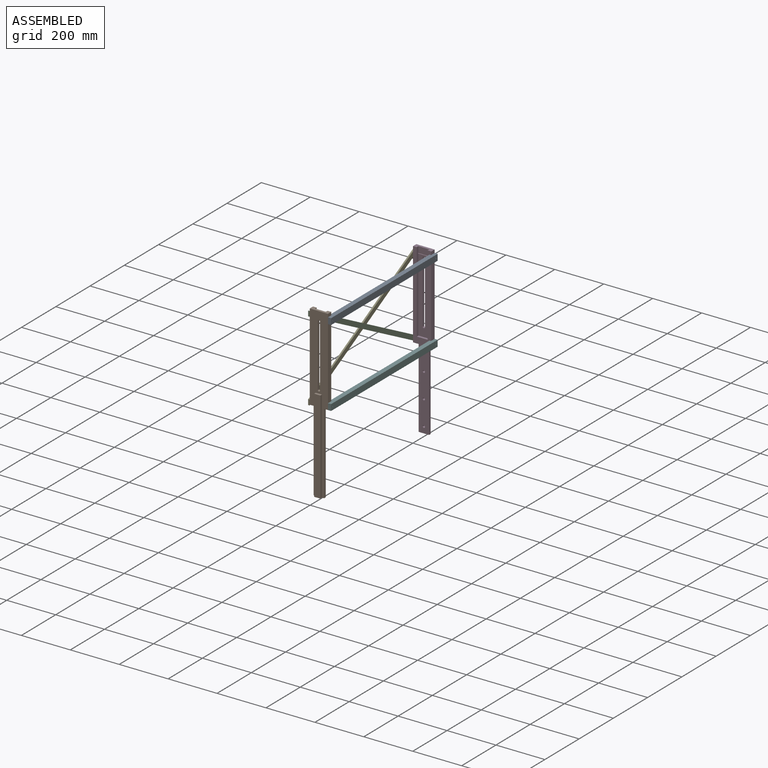
[diagram: assembled view]
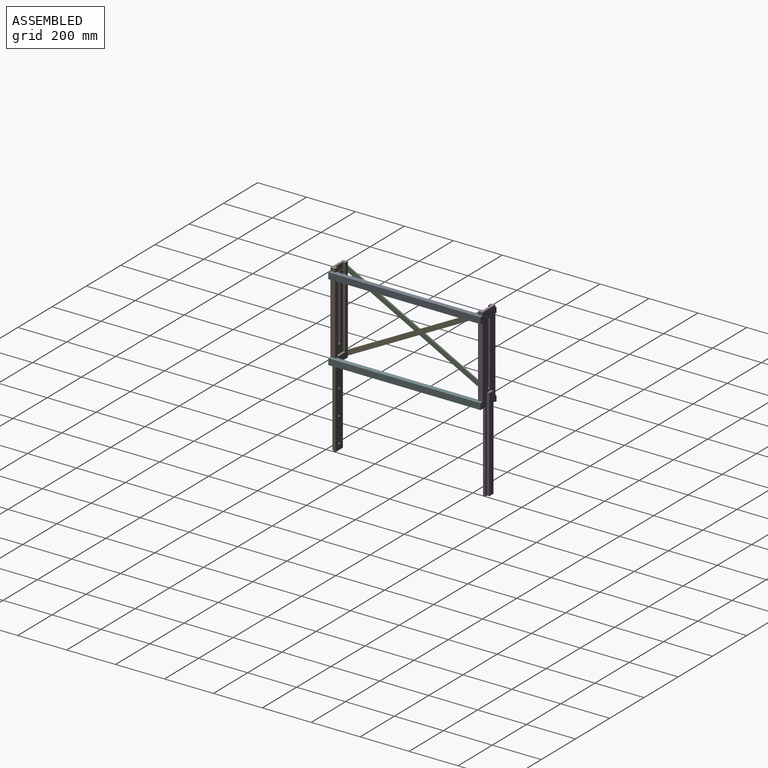
[diagram: assembled view, second angle]
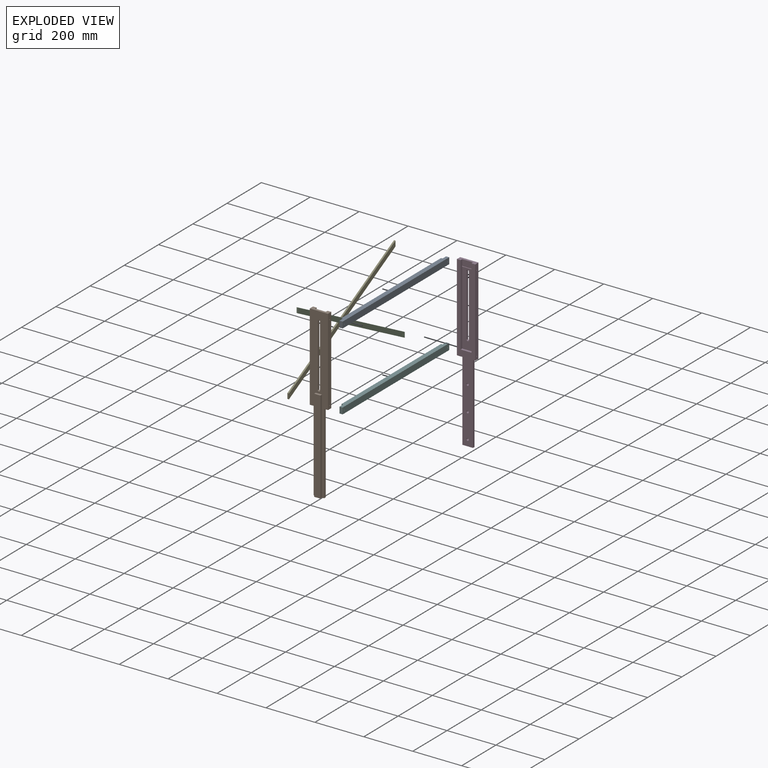
[diagram: exploded view]
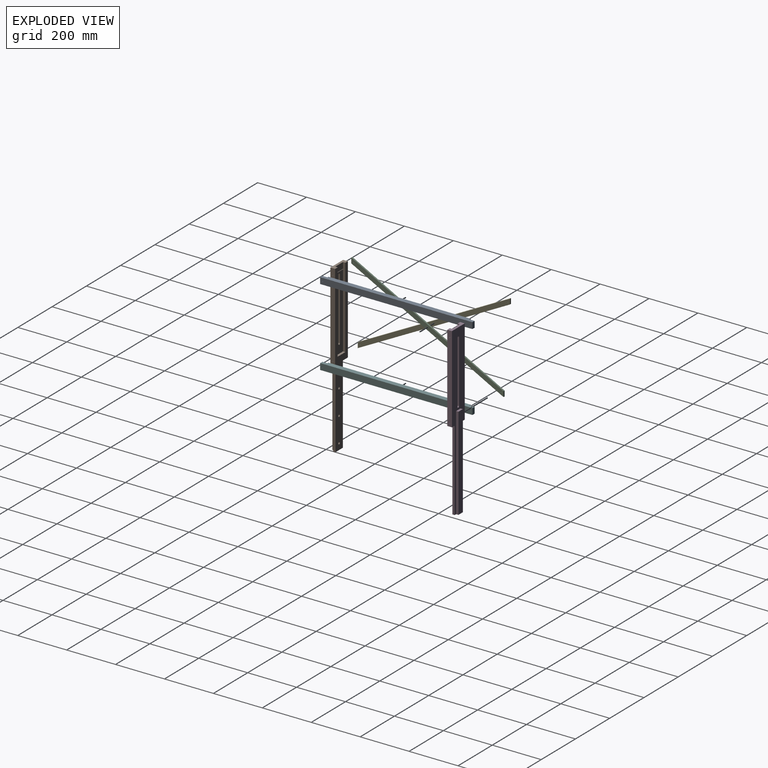
[diagram: exploded view, second angle]
ASSEMBLY  parts=6 mates=9
PART A: 12 faces, bbox 19.1x622.3x25.4 mm
  f0: plane 622.3x19.05mm, normal (0,0,1), area 11592.7mm2, adj f1,f4,f5,f6,f8,f9,f10,f11
  f1: plane 581.03x25.4mm, normal (-1,0,0), area 14758mm2, adj f0,f2,f9,f11
  f2: plane 622.3x19.05mm, normal (0,0,-1), area 11592.7mm2, adj f1,f4,f5,f6,f8,f9,f10,f11
  f3: cylinder r=1.59mm len=12.7mm, axis (1,0,0), area 126.7mm2, adj f4,f8
  f4: plane 622.3x25.4mm, normal (1,0,0), area 15790.6mm2, adj f0,f2,f3,f5,f6,f7
  f5: plane 25.4x12.7mm, normal (0,-1,0), area 322.6mm2, adj f0,f2,f4,f10
  f6: plane 25.4x12.7mm, normal (0,1,0), area 322.6mm2, adj f0,f2,f4,f8
  f7: cylinder r=1.59mm len=12.7mm, axis (1,0,0), area 126.7mm2, adj f4,f10
  f8: plane 25.4x20.64mm, normal (-1,0,0), area 516.3mm2, adj f0,f2,f3,f6,f9
  f9: plane 25.4x6.35mm, normal (0,1,0), area 161.3mm2, adj f0,f1,f2,f8
  f10: plane 25.4x20.64mm, normal (-1,0,0), area 516.3mm2, adj f0,f2,f5,f7,f11
  f11: plane 25.4x6.35mm, normal (0,-1,0), area 161.3mm2, adj f0,f1,f2,f10
PART B: 34 faces, bbox 74.6x28.6x685.8 mm
  f0: plane 303.21x44.45mm, normal (0,-1,0), area 10992.3mm2, adj f3,f4,f14,f15,f16,f27,f28,f29
  f1: plane 44.45x23.81mm, normal (0,-1,0), area 1058.5mm2, adj f7,f14,f15,f32
  f2: plane 685.8x74.61mm, normal (0,1,0), area 28522.5mm2, adj f3,f4,f5,f7,f8,f9,f10,f11
  f3: cylinder r=4.76mm len=9.53mm, axis (0,1,0), area 142.5mm2, adj f0,f2,f29,f30
  f4: cylinder r=4.76mm len=9.53mm, axis (0,1,0), area 148.2mm2, adj f0,f2,f28,f29
  f5: plane 42.86x19.05mm, normal (0,0,-1), area 650.2mm2, adj f2,f10,f11,f13,f17,f18,f19
  f6: plane 355.6x74.61mm, normal (0,-1,0), area 11854.8mm2, adj f7,f8,f9,f14,f15,f16,f20
  f7: plane 74.61x19.05mm, normal (0,0,1), area 998mm2, adj f1,f2,f6,f8,f9,f14,f15
  f8: plane 355.6x19.05mm, normal (1,0,0), area 6758.3mm2, adj f2,f6,f7,f20,f32,f33
  f9: plane 355.6x19.05mm, normal (-1,0,0), area 6758.3mm2, adj f2,f6,f7,f20,f32,f33
  f10: plane 381x9.53mm, normal (1,0,0), area 3629mm2, adj f2,f5,f12,f13
  f11: plane 381x9.53mm, normal (-1,0,0), area 3629mm2, adj f2,f5,f12,f13
  f12: plane 25.4x9.53mm, normal (0,0,1), area 241.9mm2, adj f2,f10,f11,f13
  f13: plane 381x25.4mm, normal (0,1,0), area 9677.4mm2, adj f5,f10,f11,f12
  f14: plane 330.2x9.53mm, normal (1,0,0), area 3141.2mm2, adj f0,f1,f6,f7,f16,f32
  f15: plane 330.2x9.53mm, normal (-1,0,0), area 3141.2mm2, adj f0,f1,f6,f7,f16,f32
  f16: plane 44.45x9.53mm, normal (0,0,1), area 423.4mm2, adj f0,f6,f14,f15
  f17: plane 330.2x9.53mm, normal (-1,0,0), area 3145.2mm2, adj f2,f5,f18,f20
  f18: plane 330.2x42.86mm, normal (0,-1,0), area 13939.4mm2, adj f5,f17,f19,f20,f21,f23,f25
  f19: plane 330.2x9.53mm, normal (1,0,0), area 3145.2mm2, adj f2,f5,f18,f20
  f20: plane 74.61x19.05mm, normal (0,0,-1), area 1013.1mm2, adj f2,f6,f8,f9,f17,f18,f19
  f21: cylinder r=4.76mm len=9.53mm, axis (0,1,0), area 285mm2, adj f18,f22
  f22: plane 9.53x9.53mm, normal (0,-1,0), area 71.3mm2, adj f21
  f23: cylinder r=4.76mm len=9.53mm, axis (0,1,0), area 285mm2, adj f18,f24
  f24: plane 9.53x9.53mm, normal (0,-1,0), area 71.3mm2, adj f23
  f25: cylinder r=4.76mm len=9.53mm, axis (0,1,0), area 285mm2, adj f18,f26
  f26: plane 9.53x9.53mm, normal (0,-1,0), area 71.3mm2, adj f25
  f27: cylinder r=4.76mm len=9.53mm, axis (0,1,0), area 4.1mm2, adj f0,f2,f28,f31
  f28: plane 253.57x9.53mm, normal (-1,0,0), area 2415.2mm2, adj f0,f2,f4,f27
  f29: plane 253.23x9.53mm, normal (1,0,0), area 2412.1mm2, adj f0,f2,f3,f4
  f30: plane 9.53x0.01mm, normal (0,0,1), area 0.1mm2, adj f0,f2,f3,f31
  f31: plane 9.53x0.17mm, normal (-1,0,0), area 1.6mm2, adj f0,f2,f27,f30
  f32: cylinder r=1.59mm len=74.61mm, axis (-1,0,0), area 522.5mm2, adj f0,f1,f8,f9,f14,f15
  f33: cylinder r=1.59mm len=74.61mm, axis (-1,0,0), area 744.2mm2, adj f8,f9
PART C: 8 faces, bbox 6.4x622.3x349.1 mm
  f0: plane 21.53x6.35mm, normal (0,-1,0), area 136.7mm2, adj f1,f3,f4,f5
  f1: plane 622.3x327.53mm, normal (0,0.47,0.88), area 4465.5mm2, adj f0,f2,f3,f4
  f2: plane 21.53x6.35mm, normal (0,1,0), area 136.7mm2, adj f1,f3,f4,f5
  f3: plane 622.3x349.05mm, normal (-1,0,0), area 13380.7mm2, adj f0,f1,f2,f5,f6,f7
  f4: plane 622.3x349.05mm, normal (1,0,0), area 13380.7mm2, adj f0,f1,f2,f5,f6,f7
  f5: plane 622.3x327.53mm, normal (0,-0.47,-0.88), area 4465.5mm2, adj f0,f2,f3,f4
  f6: cylinder r=1.59mm len=6.35mm, axis (1,0,0), area 63.3mm2, adj f3,f4
  f7: cylinder r=1.59mm len=6.35mm, axis (1,0,0), area 63.3mm2, adj f3,f4
PART D: same geometry as B
PART E: same geometry as C
PART F: same geometry as A
PLACE A rot(axis=(1,0,0),0deg) t=(43.77,-42.26,384.29)mm
PLACE B rot(axis=(0,0,1),180deg) t=(3.29,-343.89,66.79)mm
PLACE C rot(axis=(1,0,0),0deg) t=(-46.72,-42.26,66.79)mm
PLACE D rot(axis=(1,0,0),0deg) t=(3.29,259.36,66.79)mm fixed
PLACE E rot(axis=(0,1,0),180deg) t=(-27.67,-42.26,384.29)mm
PLACE F rot(axis=(-1,0,0),0deg) t=(43.77,-42.26,66.79)mm
MATE fastened B.f32 <-> C.f6  axis (-1,0,0) through (-34.02,-343.89,384.29)mm
MATE planar B.f9 <-> F.f10  axis (1,0,0) through (40.59,-343.89,231.9)mm
MATE planar C.f4 <-> D.f9  axis (1,0,0) through (-34.02,-42.26,225.54)mm
MATE planar B.f8 <-> E.f3  axis (-1,0,0) through (-34.02,-343.89,231.9)mm
MATE fastened E.f6 <-> B.f33  axis (1,0,0) through (-34.02,-343.89,66.79)mm
MATE fastened D.f32 <-> A.f3  axis (1,0,0) through (40.59,259.36,384.29)mm
MATE fastened A.f7 <-> B.f32  axis (-1,0,0) through (40.59,-343.89,384.29)mm
MATE fastened B.f33 <-> F.f7  axis (1,0,0) through (40.59,-343.89,66.79)mm
MATE planar A.f10 <-> B.f9  axis (-1,0,0) through (40.59,-343.08,384.29)mm
